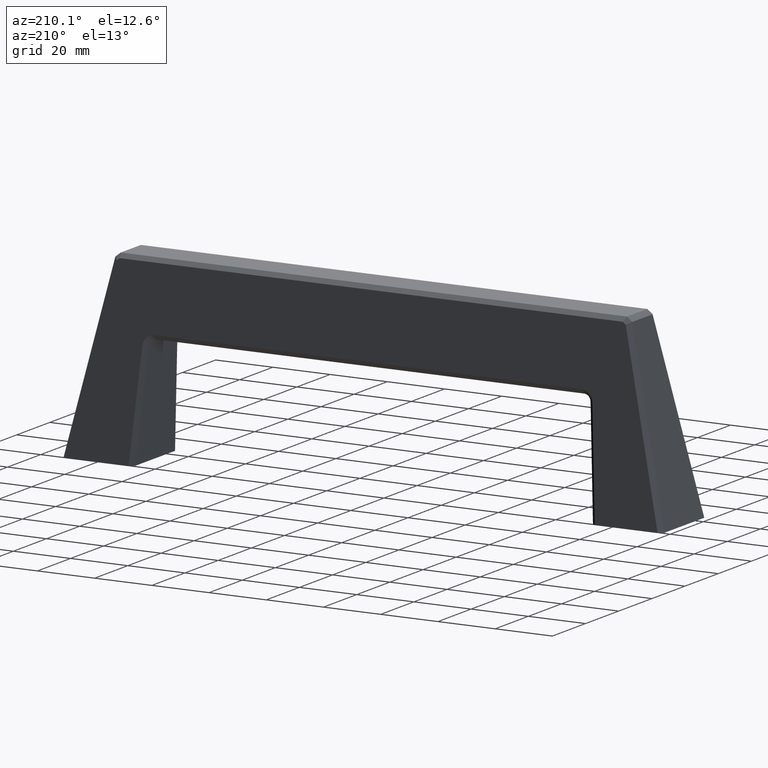
[diagram: clean part render]
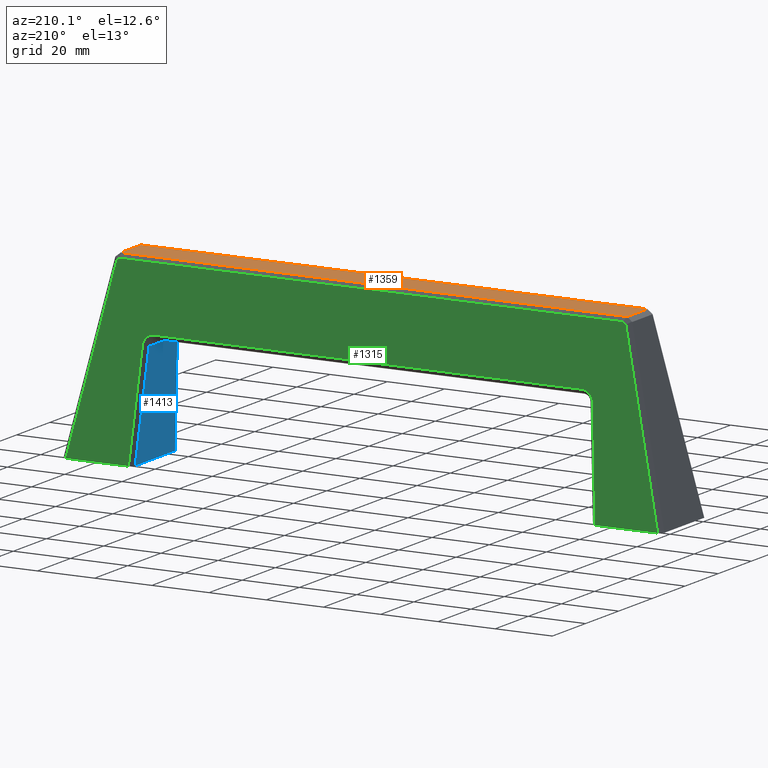
[diagram: same view with three faces highlighted in distinct colors, each labeled with its STEP entity id]
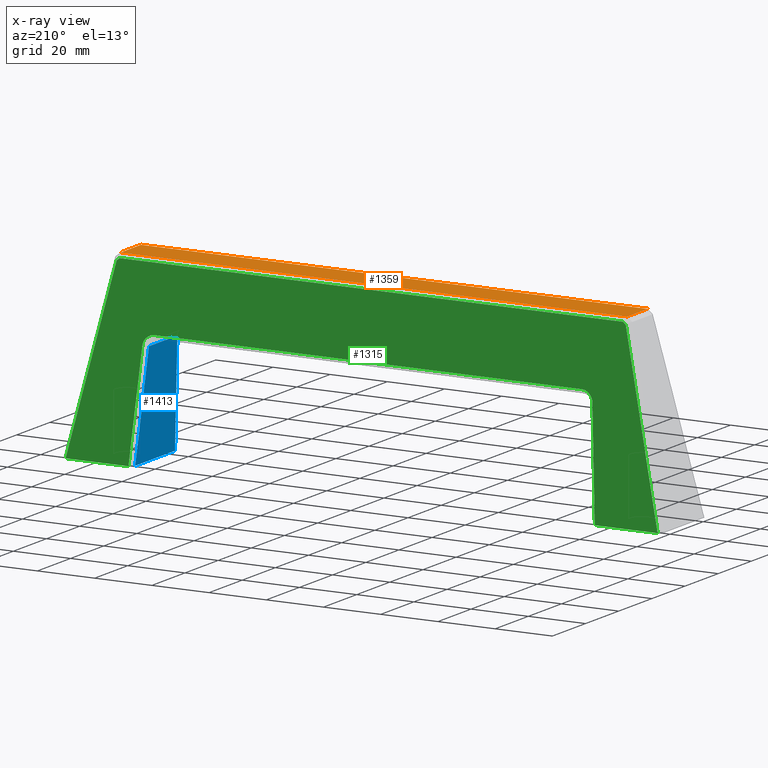
[diagram: x-ray of the same camera — body ghosted, the three highlighted faces saturated]
A machine part, auxiliary view with three faces highlighted in distinct colors.
The next image is the same camera in x-ray (body ghosted, the three faces saturated) — at least one of them is partly hidden behind the body in this view.
Their STEP definitions:

[orange] entity #1359 — the highlighted face is a freeform B-spline surface patch.
#882=CARTESIAN_POINT('',(88.450637587263600,-6.105014680472200,64.0));
#883=VERTEX_POINT('',#882);
#897=CARTESIAN_POINT('',(88.500447999999992,-6.073936060289350,64.0));
#898=VERTEX_POINT('',#897);
#904=CARTESIAN_POINT('',(88.450637587263600,-6.105014680472200,64.0));
#905=CARTESIAN_POINT('',(88.500447999999992,-6.073936060289350,64.0));
#906=QUASI_UNIFORM_CURVE('',1,(#904,#905),.UNSPECIFIED.,.F.,.U.);
#907=EDGE_CURVE('',#883,#898,#906,.T.);
#917=CARTESIAN_POINT('',(-88.450312507124906,-6.105014680472200,64.0));
#918=VERTEX_POINT('',#917);
#932=CARTESIAN_POINT('',(-88.450312507124906,-6.105014680472200,64.0));
#933=CARTESIAN_POINT('',(88.450637587263600,-6.105014680472200,64.0));
#934=QUASI_UNIFORM_CURVE('',1,(#932,#933),.UNSPECIFIED.,.F.,.U.);
#935=EDGE_CURVE('',#918,#883,#934,.T.);
#960=CARTESIAN_POINT('',(-88.500122722195897,-6.073936280265730,64.0));
#961=VERTEX_POINT('',#960);
#962=CARTESIAN_POINT('',(-88.500122722195897,-6.073936280265730,64.0));
#963=CARTESIAN_POINT('',(-88.450312507124906,-6.105014680472200,64.0));
#964=QUASI_UNIFORM_CURVE('',1,(#962,#963),.UNSPECIFIED.,.F.,.U.);
#965=EDGE_CURVE('',#961,#918,#964,.T.);
#1058=CARTESIAN_POINT('',(-88.450312529448496,6.105015305924220,64.0));
#1059=VERTEX_POINT('',#1058);
#1073=CARTESIAN_POINT('',(-88.500122722195897,6.073936919646431,64.0));
#1074=VERTEX_POINT('',#1073);
#1080=CARTESIAN_POINT('',(-88.450312529448496,6.105015305924220,64.0));
#1081=CARTESIAN_POINT('',(-88.500122722195897,6.073936919646431,64.0));
#1082=QUASI_UNIFORM_CURVE('',1,(#1080,#1081),.UNSPECIFIED.,.F.,.U.);
#1083=EDGE_CURVE('',#1059,#1074,#1082,.T.);
#1093=CARTESIAN_POINT('',(88.450637609594708,6.105015305924220,64.0));
#1094=VERTEX_POINT('',#1093);
#1108=CARTESIAN_POINT('',(88.450637609594708,6.105015305924220,64.0));
#1109=CARTESIAN_POINT('',(-88.450312529448496,6.105015305924220,64.0));
#1110=QUASI_UNIFORM_CURVE('',1,(#1108,#1109),.UNSPECIFIED.,.F.,.U.);
#1111=EDGE_CURVE('',#1094,#1059,#1110,.T.);
#1136=CARTESIAN_POINT('',(88.500447999999992,6.073936699674571,64.0));
#1137=VERTEX_POINT('',#1136);
#1138=CARTESIAN_POINT('',(88.500447999999992,6.073936699674571,64.0));
#1139=CARTESIAN_POINT('',(88.450637609594708,6.105015305924220,64.0));
#1140=QUASI_UNIFORM_CURVE('',1,(#1138,#1139),.UNSPECIFIED.,.F.,.U.);
#1141=EDGE_CURVE('',#1137,#1094,#1140,.T.);
#1258=CARTESIAN_POINT('',(88.500447999999992,-6.073936060289350,64.0));
#1259=CARTESIAN_POINT('',(88.500447999999992,6.073936699674571,64.0));
#1260=QUASI_UNIFORM_CURVE('',1,(#1258,#1259),.UNSPECIFIED.,.F.,.U.);
#1261=EDGE_CURVE('',#898,#1137,#1260,.T.);
#1273=CARTESIAN_POINT('',(-88.500122722195897,6.073936919646431,64.0));
#1274=CARTESIAN_POINT('',(-88.500122722195897,-6.073936280265730,64.0));
#1275=QUASI_UNIFORM_CURVE('',1,(#1273,#1274),.UNSPECIFIED.,.F.,.U.);
#1276=EDGE_CURVE('',#1074,#961,#1275,.T.);
#1344=CARTESIAN_POINT('',(-97.341300886708140,-6.714905769246319,64.0));
#1345=CARTESIAN_POINT('',(97.341630912037502,-6.714905769246319,64.0));
#1346=CARTESIAN_POINT('',(-97.341300886708140,6.714906613030690,64.0));
#1347=CARTESIAN_POINT('',(97.341630912037488,6.714906613030690,64.0));
#1348=B_SPLINE_SURFACE_WITH_KNOTS('',1,1,((#1344,#1346),(#1345,#1347)),.UNSPECIFIED.,.F.,.F.,.U.,(2,2),(2,2),(0.0,194.682931798745610),(0.0,13.429812382277010),.UNSPECIFIED.);
#1349=ORIENTED_EDGE('',*,*,#935,.T.);
#1350=ORIENTED_EDGE('',*,*,#907,.T.);
#1351=ORIENTED_EDGE('',*,*,#1261,.T.);
#1352=ORIENTED_EDGE('',*,*,#1141,.T.);
#1353=ORIENTED_EDGE('',*,*,#1111,.T.);
#1354=ORIENTED_EDGE('',*,*,#1083,.T.);
#1355=ORIENTED_EDGE('',*,*,#1276,.T.);
#1356=ORIENTED_EDGE('',*,*,#965,.T.);
#1357=EDGE_LOOP('',(#1349,#1350,#1351,#1352,#1353,#1354,#1355,#1356));
#1358=FACE_OUTER_BOUND('',#1357,.T.);
#1359=ADVANCED_FACE('',(#1358),#1348,.T.);

[blue] entity #1413 — the highlighted face is a freeform B-spline surface patch.
#443=CARTESIAN_POINT('',(77.178022298089601,-8.553835902777809,36.691710077425753));
#444=VERTEX_POINT('',#443);
#450=CARTESIAN_POINT('',(80.0,-11.993463572276140,0.0));
#451=VERTEX_POINT('',#450);
#452=CARTESIAN_POINT('',(80.0,-11.993463572276140,0.0));
#453=CARTESIAN_POINT('',(77.178022298089601,-8.553835902777809,36.691710077425753));
#454=QUASI_UNIFORM_CURVE('',1,(#452,#453),.UNSPECIFIED.,.F.,.U.);
#455=EDGE_CURVE('',#451,#444,#454,.T.);
#640=CARTESIAN_POINT('',(80.0,11.993463572276500,0.0));
#641=VERTEX_POINT('',#640);
#649=CARTESIAN_POINT('',(77.178022298089601,8.553835902777932,36.691710077425753));
#650=VERTEX_POINT('',#649);
#651=CARTESIAN_POINT('',(77.178022298089601,8.553835902777932,36.691710077425753));
#652=CARTESIAN_POINT('',(80.0,11.993463572276500,0.0));
#653=QUASI_UNIFORM_CURVE('',1,(#651,#652),.UNSPECIFIED.,.F.,.U.);
#654=EDGE_CURVE('',#650,#641,#653,.T.);
#1200=CARTESIAN_POINT('',(77.178022298089601,-8.553835902777809,36.691710077425753));
#1201=CARTESIAN_POINT('',(77.178022298089601,8.553835902777932,36.691710077425753));
#1202=QUASI_UNIFORM_CURVE('',1,(#1200,#1201),.UNSPECIFIED.,.F.,.U.);
#1203=EDGE_CURVE('',#444,#650,#1202,.T.);
#1383=CARTESIAN_POINT('',(80.0,11.993463572276500,0.0));
#1384=CARTESIAN_POINT('',(80.0,-11.993463572276140,0.0));
#1385=QUASI_UNIFORM_CURVE('',1,(#1383,#1384),.UNSPECIFIED.,.F.,.U.);
#1386=EDGE_CURVE('',#641,#451,#1385,.T.);
#1402=CARTESIAN_POINT('',(80.140957780740848,-13.191610536655221,-1.832750847251768));
#1403=CARTESIAN_POINT('',(77.037064441657378,-13.191610536655221,38.524461908825870));
#1404=CARTESIAN_POINT('',(80.140957780740848,13.191611180035110,-1.832750847251768));
#1405=CARTESIAN_POINT('',(77.037064441657378,13.191611180035110,38.524461908825870));
#1406=B_SPLINE_SURFACE_WITH_KNOTS('',1,1,((#1402,#1404),(#1403,#1405)),.UNSPECIFIED.,.F.,.F.,.U.,(2,2),(2,2),(0.0,40.476397755972833),(0.0,26.383221716690329),.UNSPECIFIED.);
#1407=ORIENTED_EDGE('',*,*,#1386,.T.);
#1408=ORIENTED_EDGE('',*,*,#455,.T.);
#1409=ORIENTED_EDGE('',*,*,#1203,.T.);
#1410=ORIENTED_EDGE('',*,*,#654,.T.);
#1411=EDGE_LOOP('',(#1407,#1408,#1409,#1410));
#1412=FACE_OUTER_BOUND('',#1411,.T.);
#1413=ADVANCED_FACE('',(#1412),#1406,.T.);

[green] entity #1315 — the highlighted face is a freeform B-spline surface patch.
#642=CARTESIAN_POINT('',(81.504389825942582,13.500000000000000,0.0));
#643=VERTEX_POINT('',#642);
#656=CARTESIAN_POINT('',(78.662937682410103,10.036635492252641,36.944919224136250));
#657=VERTEX_POINT('',#656);
#663=CARTESIAN_POINT('',(81.504389825942582,13.500000000000000,0.0));
#664=CARTESIAN_POINT('',(78.662937682410103,10.036635492252641,36.944919224136250));
#665=QUASI_UNIFORM_CURVE('',1,(#663,#664),.UNSPECIFIED.,.F.,.U.);
#666=EDGE_CURVE('',#643,#657,#665,.T.);
#682=CARTESIAN_POINT('',(74.685383686855801,9.691340243795910,40.628304277651353));
#683=VERTEX_POINT('',#682);
#689=CARTESIAN_POINT('',(78.662937682410103,10.036635492252641,36.944919224136250));
#690=CARTESIAN_POINT('',(78.622837329733741,9.967095218834865,37.686729616457527));
#691=CARTESIAN_POINT('',(78.279696349183752,9.902261754209135,38.378330834943291));
#692=CARTESIAN_POINT('',(77.949846882900744,9.839939604083478,39.043142984261188));
#693=CARTESIAN_POINT('',(77.391052689830701,9.791416354566229,39.560757439770313));
#694=CARTESIAN_POINT('',(76.833141406494661,9.742969773077968,40.077554050628187));
#695=CARTESIAN_POINT('',(76.143963027877632,9.716856711652342,40.356111200159098));
#696=CARTESIAN_POINT('',(75.428677560825605,9.689754449135824,40.645220503330677));
#697=CARTESIAN_POINT('',(74.685383686855801,9.691340243795910,40.628304277651353));
#698=B_SPLINE_CURVE_WITH_KNOTS('',2,(#689,#690,#691,#692,#693,#694,#695,#696,#697),.UNSPECIFIED.,.F.,.U.,(3,2,2,2,3),(0.0,0.250000000000000,0.500000000000000,0.750000000000000,1.0),.UNSPECIFIED.);
#699=EDGE_CURVE('',#657,#683,#698,.T.);
#731=CARTESIAN_POINT('',(-74.684983689869199,9.691340243795910,40.628304277651353));
#732=VERTEX_POINT('',#731);
#738=CARTESIAN_POINT('',(74.685383686855801,9.691340243795910,40.628304277651353));
#739=CARTESIAN_POINT('',(-74.684983689869199,9.691340243795910,40.628304277651353));
#740=QUASI_UNIFORM_CURVE('',1,(#738,#739),.UNSPECIFIED.,.F.,.U.);
#741=EDGE_CURVE('',#683,#732,#740,.T.);
#763=CARTESIAN_POINT('',(-78.662534369845915,10.036631451276859,36.944962330636663));
#764=VERTEX_POINT('',#763);
#770=CARTESIAN_POINT('',(-74.684983689869199,9.691340243795910,40.628304277651353));
#771=CARTESIAN_POINT('',(-75.427679292764282,9.689755753384343,40.645206590456048));
#772=CARTESIAN_POINT('',(-76.143552866518192,9.716856348040144,40.356115078937442));
#773=CARTESIAN_POINT('',(-76.831697507276260,9.742907217435924,40.078221353517378));
#774=CARTESIAN_POINT('',(-77.390637000414159,9.791414966013774,39.560772251944492));
#775=CARTESIAN_POINT('',(-77.948693354108144,9.839846071043191,39.044140733880241));
#776=CARTESIAN_POINT('',(-78.279282149032241,9.902259024748705,38.378359951051323));
#777=CARTESIAN_POINT('',(-78.622393971658155,9.967036242338137,37.687358739353172));
#778=CARTESIAN_POINT('',(-78.662534369845915,10.036631451276859,36.944962330636663));
#779=B_SPLINE_CURVE_WITH_KNOTS('',2,(#770,#771,#772,#773,#774,#775,#776,#777,#778),.UNSPECIFIED.,.F.,.U.,(3,2,2,2,3),(0.0,0.250000000000000,0.500000000000000,0.750000000000000,1.0),.UNSPECIFIED.);
#780=EDGE_CURVE('',#732,#764,#779,.T.);
#811=CARTESIAN_POINT('',(-81.504392586404606,13.499999999999799,0.0));
#812=VERTEX_POINT('',#811);
#820=CARTESIAN_POINT('',(-78.662534369845915,10.036631451276859,36.944962330636663));
#821=CARTESIAN_POINT('',(-81.504392586404606,13.499999999999799,0.0));
#822=QUASI_UNIFORM_CURVE('',1,(#820,#821),.UNSPECIFIED.,.F.,.U.);
#823=EDGE_CURVE('',#764,#812,#822,.T.);
#1017=CARTESIAN_POINT('',(-103.459702791621200,13.500000000000000,0.0));
#1018=VERTEX_POINT('',#1017);
#1038=CARTESIAN_POINT('',(-88.972309433597815,7.705369059758549,61.813352750485102));
#1039=VERTEX_POINT('',#1038);
#1045=CARTESIAN_POINT('',(-103.459702791621200,13.500000000000000,0.0));
#1046=CARTESIAN_POINT('',(-88.972309433597815,7.705369059758549,61.813352750485102));
#1047=QUASI_UNIFORM_CURVE('',1,(#1045,#1046),.UNSPECIFIED.,.F.,.U.);
#1048=EDGE_CURVE('',#1018,#1039,#1047,.T.);
#1060=CARTESIAN_POINT('',(-87.966450397191508,7.630620439749621,62.610722395571003));
#1061=VERTEX_POINT('',#1060);
#1067=CARTESIAN_POINT('',(-88.972309433597815,7.705369059758549,61.813352750485102));
#1068=CARTESIAN_POINT('',(-87.966450397191508,7.630620439749621,62.610722395571003));
#1069=QUASI_UNIFORM_CURVE('',1,(#1067,#1068),.UNSPECIFIED.,.F.,.U.);
#1070=EDGE_CURVE('',#1039,#1061,#1069,.T.);
#1095=CARTESIAN_POINT('',(87.966773557221700,7.630620439749621,62.610722395571003));
#1096=VERTEX_POINT('',#1095);
#1102=CARTESIAN_POINT('',(-87.966450397191508,7.630620439749621,62.610722395571003));
#1103=CARTESIAN_POINT('',(87.966773557221700,7.630620439749621,62.610722395571003));
#1104=QUASI_UNIFORM_CURVE('',1,(#1102,#1103),.UNSPECIFIED.,.F.,.U.);
#1105=EDGE_CURVE('',#1061,#1096,#1104,.T.);
#1123=CARTESIAN_POINT('',(88.972633037788398,7.705369471288500,61.813348360551402));
#1124=VERTEX_POINT('',#1123);
#1130=CARTESIAN_POINT('',(87.966773557221700,7.630620439749621,62.610722395571003));
#1131=CARTESIAN_POINT('',(88.972633037788398,7.705369471288500,61.813348360551402));
#1132=QUASI_UNIFORM_CURVE('',1,(#1130,#1131),.UNSPECIFIED.,.F.,.U.);
#1133=EDGE_CURVE('',#1096,#1124,#1132,.T.);
#1156=CARTESIAN_POINT('',(103.459703866354000,13.500000000000000,0.0));
#1157=VERTEX_POINT('',#1156);
#1165=CARTESIAN_POINT('',(88.972633037788398,7.705369471288500,61.813348360551402));
#1166=CARTESIAN_POINT('',(103.459703866354000,13.500000000000000,0.0));
#1167=QUASI_UNIFORM_CURVE('',1,(#1165,#1166),.UNSPECIFIED.,.F.,.U.);
#1168=EDGE_CURVE('',#1124,#1157,#1167,.T.);
#1288=CARTESIAN_POINT('',(113.795325885458600,13.793175476689081,-3.127405238617560));
#1289=CARTESIAN_POINT('',(113.795325885458600,7.337445225442359,65.738124835271179));
#1290=CARTESIAN_POINT('',(-113.795332210740400,13.793175476689081,-3.127405238617560));
#1291=CARTESIAN_POINT('',(-113.795332210740400,7.337445225442359,65.738124835271179));
#1292=B_SPLINE_SURFACE_WITH_KNOTS('',1,1,((#1288,#1290),(#1289,#1291)),.UNSPECIFIED.,.F.,.F.,.U.,(2,2),(2,2),(0.0,69.167461175284842),(0.0,227.590658096199010),.UNSPECIFIED.);
#1293=CARTESIAN_POINT('',(81.504389825942582,13.500000000000000,0.0));
#1294=CARTESIAN_POINT('',(103.459703866354000,13.500000000000000,0.0));
#1295=QUASI_UNIFORM_CURVE('',1,(#1293,#1294),.UNSPECIFIED.,.F.,.U.);
#1296=EDGE_CURVE('',#643,#1157,#1295,.T.);
#1297=ORIENTED_EDGE('',*,*,#1296,.F.);
#1298=ORIENTED_EDGE('',*,*,#666,.T.);
#1299=ORIENTED_EDGE('',*,*,#699,.T.);
#1300=ORIENTED_EDGE('',*,*,#741,.T.);
#1301=ORIENTED_EDGE('',*,*,#780,.T.);
#1302=ORIENTED_EDGE('',*,*,#823,.T.);
#1303=CARTESIAN_POINT('',(-103.459702791621200,13.500000000000000,0.0));
#1304=CARTESIAN_POINT('',(-81.504392586404606,13.499999999999799,0.0));
#1305=QUASI_UNIFORM_CURVE('',1,(#1303,#1304),.UNSPECIFIED.,.F.,.U.);
#1306=EDGE_CURVE('',#1018,#812,#1305,.T.);
#1307=ORIENTED_EDGE('',*,*,#1306,.F.);
#1308=ORIENTED_EDGE('',*,*,#1048,.T.);
#1309=ORIENTED_EDGE('',*,*,#1070,.T.);
#1310=ORIENTED_EDGE('',*,*,#1105,.T.);
#1311=ORIENTED_EDGE('',*,*,#1133,.T.);
#1312=ORIENTED_EDGE('',*,*,#1168,.T.);
#1313=EDGE_LOOP('',(#1297,#1298,#1299,#1300,#1301,#1302,#1307,#1308,#1309,#1310,#1311,#1312));
#1314=FACE_OUTER_BOUND('',#1313,.T.);
#1315=ADVANCED_FACE('',(#1314),#1292,.F.);